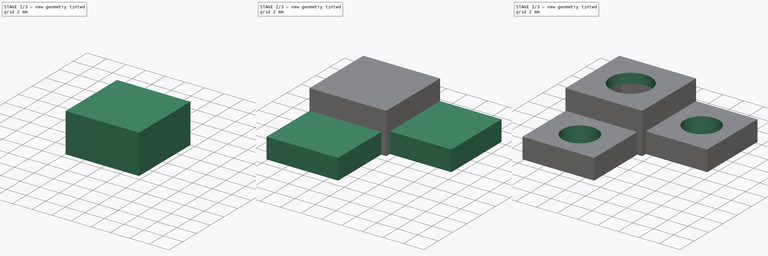
[diagram: build sequence overview — one tinted view per stage of 3, left to right]
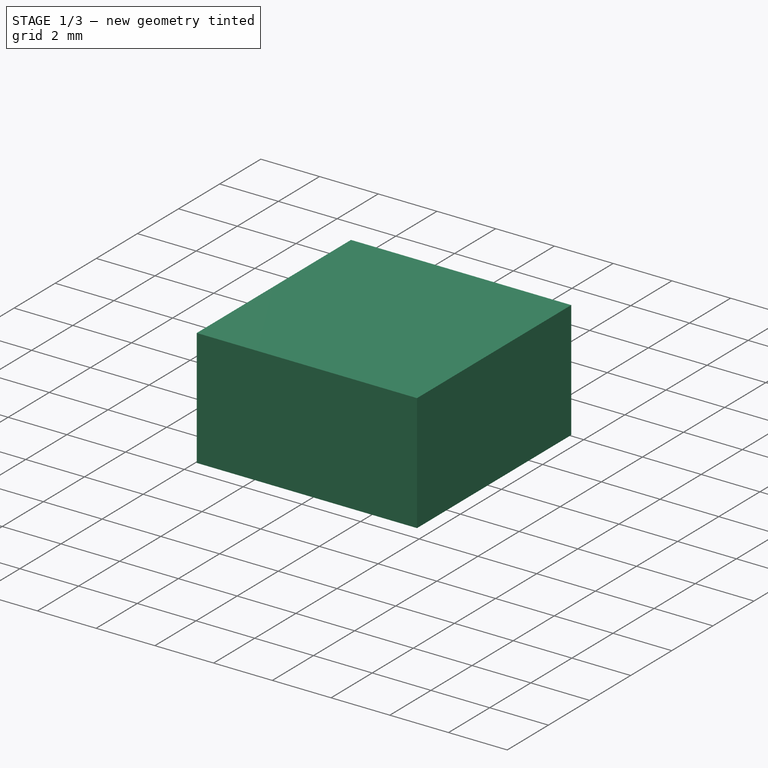
[diagram: stage 1 of 3 — iso view after this stage's code; geometry added in this stage tinted green]
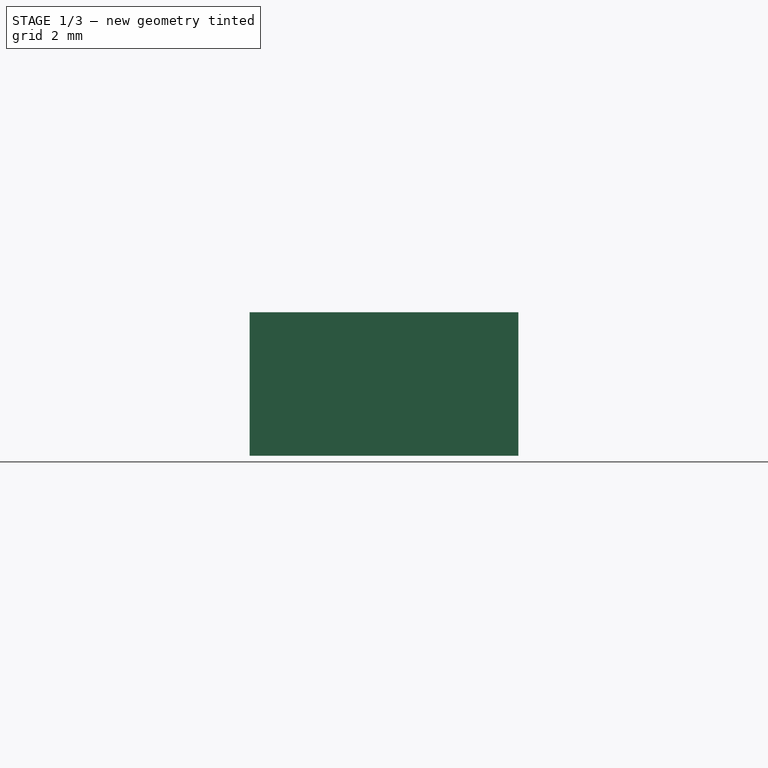
[diagram: stage 1 of 3 — front view after this stage's code; geometry added in this stage tinted green]
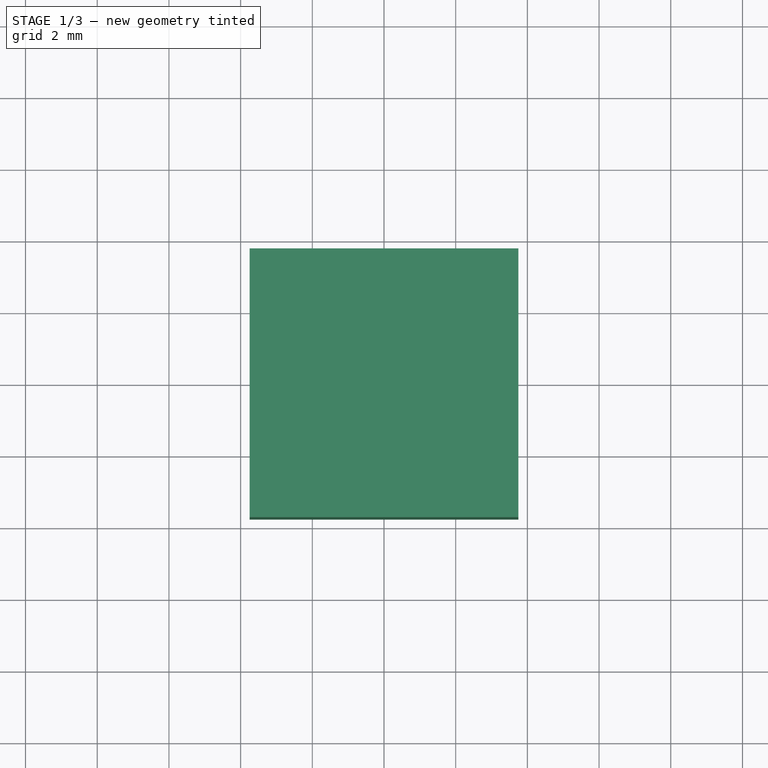
[diagram: stage 1 of 3 — top view after this stage's code; geometry added in this stage tinted green]
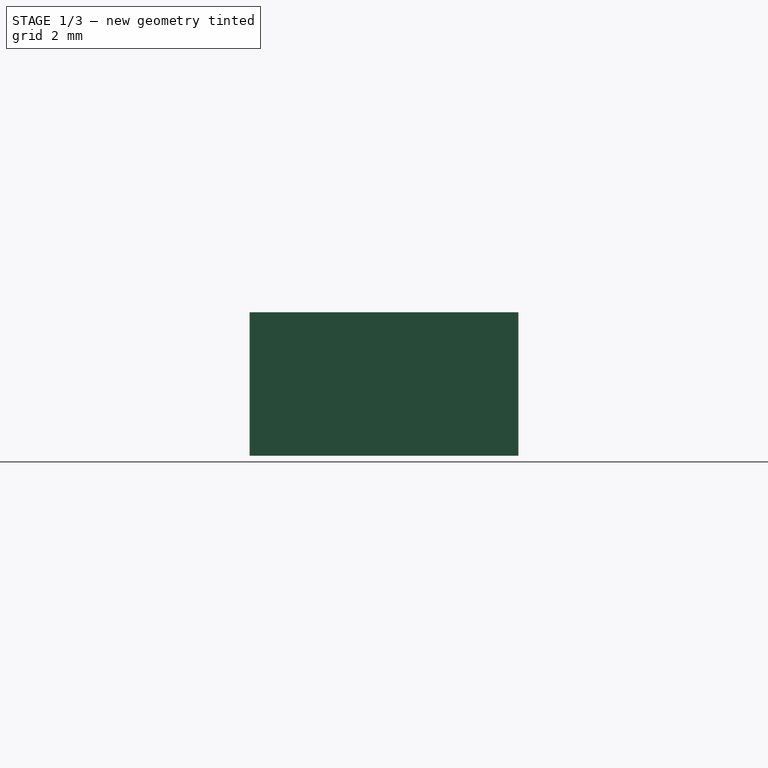
[diagram: stage 1 of 3 — right view after this stage's code; geometry added in this stage tinted green]
FCSTD DOCUMENT  (FreeCAD 1.0R39109 (Git))
Label: top corner magnet
License: All rights reserved
LicenseURL: https://en.wikipedia.org/wiki/All_rights_reserved
objects: Sketcher::SketchObject×6, PartDesign::Pad×4, PartDesign::Hole×1, PartDesign::Pocket×1, PartDesign::Body×1
note: 31 computed .brp shape members not serialized (recipe doc carries the construction recipe); baked Part::Feature solids carry a one-line shape summary decoded from their .brp
EXTERNAL_REF file=case.FCStd obj=Spreadsheet

FEATURE [Sketcher::SketchObject] Sketch
  ArcFitTolerance = 1e-06
  AttachmentSupport = -> [XY_Plane]
  FullyConstrained = true
  MakeInternals = false
  MapMode = 5
  expr: Constraints[8] = case#Spreadsheet.magnet_diameter
  sketch-geometry (8):
    g0: LineSegment StartX=-3.025 StartY=3.025 StartZ=0 EndX=-3.025 EndY=-3.025 EndZ=0
    g1: LineSegment StartX=-3.025 StartY=-3.025 StartZ=0 EndX=3.025 EndY=-3.025 EndZ=0
    g2: LineSegment StartX=3.025 StartY=-3.025 StartZ=0 EndX=3.025 EndY=3.025 EndZ=0
    g3: LineSegment StartX=3.025 StartY=3.025 StartZ=0 EndX=-3.025 EndY=3.025 EndZ=0
    g4: LineSegment StartX=-3.75 StartY=3.75 StartZ=0 EndX=-3.75 EndY=-3.75 EndZ=0
    g5: LineSegment StartX=-3.75 StartY=-3.75 StartZ=0 EndX=3.75 EndY=-3.75 EndZ=0
    g6: LineSegment StartX=3.75 StartY=-3.75 StartZ=0 EndX=3.75 EndY=3.75 EndZ=0
    g7: LineSegment StartX=3.75 StartY=3.75 StartZ=0 EndX=-3.75 EndY=3.75 EndZ=0
  constraints (22):
    c: Coincident(g0,g1)
    c: Coincident(g1,g2)
    c: Coincident(g2,g3)
    c: Coincident(g3,g0)
    c: Vertical(g0)
    c: Vertical(g2)
    c: Horizontal(g1)
    c: Horizontal(g3)
    c: DistanceY(g1,g2) = 6.05
    c: Equal(g3,g2)
    c: Symmetric(g1,g0,g-1)
    c: Coincident(g4,g5)
    c: Coincident(g5,g6)
    c: Coincident(g6,g7)
    c: Coincident(g7,g4)
    c: Vertical(g4)
    c: Vertical(g6)
    c: Horizontal(g5)
    c: Horizontal(g7)
    c: Symmetric(g6,g4,g-1)
    c: Equal(g6,g7)
    c: Distance(g4,g7) = 7.5
FEATURE [PartDesign::Pad] Pad  label="magnet compartment wall"
  Direction = (0,0,1)
  Length = 3.05
  Length2 = 10
  Profile = -> Sketch
  ReferenceAxis = -> Sketch [N_Axis]
  Refine = true
  Suppressed = false
  Type = 0
  expr: Length = case#Spreadsheet.magnet_thickness
FEATURE [Sketcher::SketchObject] Sketch001
  ArcFitTolerance = 1e-06
  AttachmentSupport = -> [Pad]
  ExternalGeometry = -> [Pad]
  FullyConstrained = true
  MakeInternals = false
  MapMode = 5
  Placement = pos=(0,0,3.05) rot=(0,0,1;0rad)
  sketch-geometry (4):
    g0: LineSegment StartX=-3.75 StartY=3.75 StartZ=0 EndX=-3.75 EndY=-3.75 EndZ=0
    g1: LineSegment StartX=-3.75 StartY=-3.75 StartZ=0 EndX=3.75 EndY=-3.75 EndZ=0
    g2: LineSegment StartX=3.75 StartY=-3.75 StartZ=0 EndX=3.75 EndY=3.75 EndZ=0
    g3: LineSegment StartX=3.75 StartY=3.75 StartZ=0 EndX=-3.75 EndY=3.75 EndZ=0
  constraints (10):
    c: Coincident(g0,g1)
    c: Coincident(g1,g2)
    c: Coincident(g2,g3)
    c: Coincident(g3,g0)
    c: Vertical(g0)
    c: Vertical(g2)
    c: Horizontal(g1)
    c: Horizontal(g3)
    c: Coincident(g0,g-3)
    c: Coincident(g1,g-4)
FEATURE [PartDesign::Pad] Pad001  label="bottom wall for magnets compartment"
  BaseFeature = -> Pad
  Direction = (0,0,1)
  Length = 0.95
  Length2 = 10
  Profile = -> Sketch001
  ReferenceAxis = -> Sketch001 [N_Axis]
  Refine = true
  Suppressed = false
  Type = 0
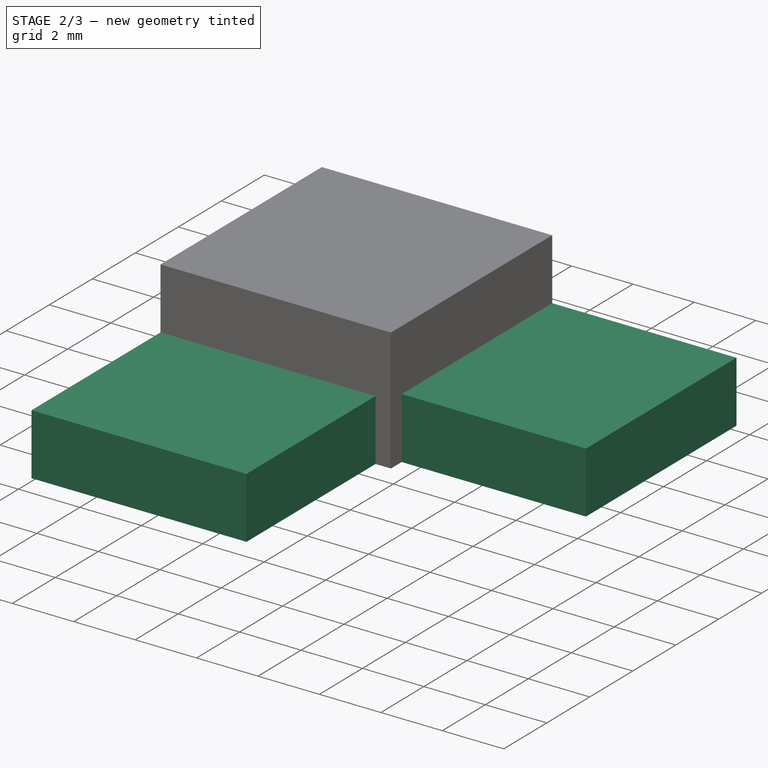
[diagram: stage 2 of 3 — iso view after this stage's code; geometry added in this stage tinted green]
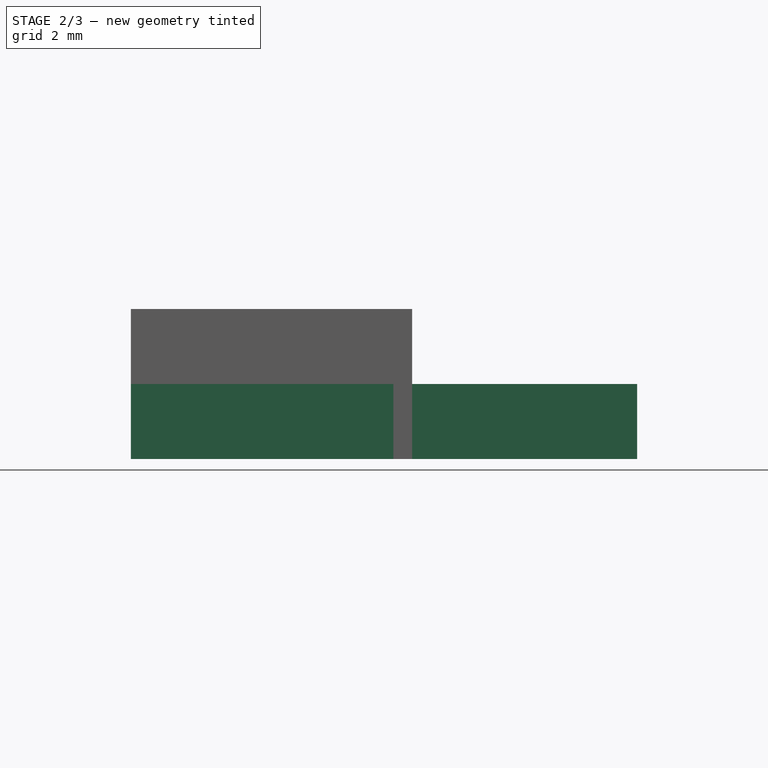
[diagram: stage 2 of 3 — front view after this stage's code; geometry added in this stage tinted green]
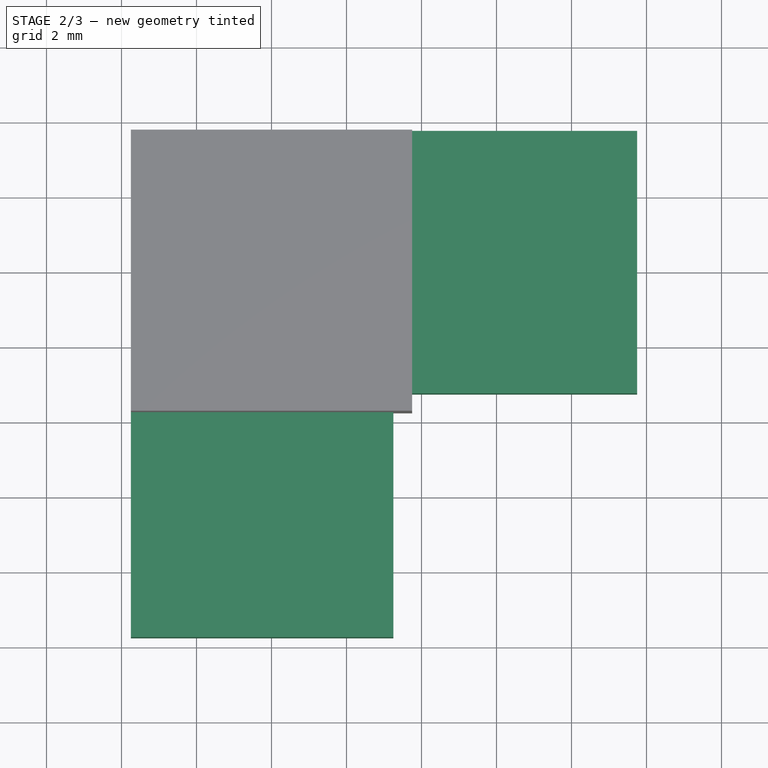
[diagram: stage 2 of 3 — top view after this stage's code; geometry added in this stage tinted green]
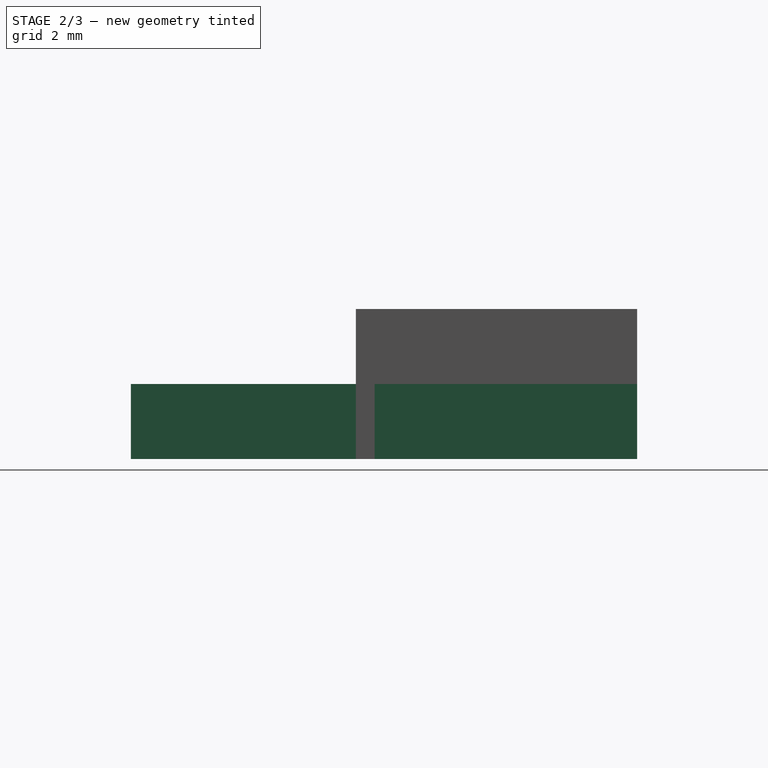
[diagram: stage 2 of 3 — right view after this stage's code; geometry added in this stage tinted green]
FEATURE [Sketcher::SketchObject] Sketch002
  ArcFitTolerance = 1e-06
  AttachmentSupport = -> [Pad001]
  ExternalGeometry = -> [Pad001]
  FullyConstrained = true
  MakeInternals = false
  MapMode = 5
  Placement = pos=(0,-3.75,0) rot=(1,0,0;1.5708rad)
  sketch-geometry (4):
    g0: LineSegment StartX=-3.75 StartY=0 StartZ=0 EndX=3.25 EndY=0 EndZ=0
    g1: LineSegment StartX=3.25 StartY=0 StartZ=0 EndX=3.25 EndY=2 EndZ=0
    g2: LineSegment StartX=3.25 StartY=2 StartZ=0 EndX=-3.75 EndY=2 EndZ=0
    g3: LineSegment StartX=-3.75 StartY=2 StartZ=0 EndX=-3.75 EndY=0 EndZ=0
  constraints (11):
    c: Coincident(g0,g1)
    c: Coincident(g1,g2)
    c: Coincident(g2,g3)
    c: Coincident(g3,g0)
    c: Horizontal(g0)
    c: Horizontal(g2)
    c: Vertical(g1)
    c: Vertical(g3)
    c: Distance(g1,g3) = 7
    c: Distance(g0,g2) = 2
    c: Coincident(g0,g-3)
FEATURE [PartDesign::Pad] Pad002  label="left flange"
  BaseFeature = -> Pad001
  Direction = (0,-1,2e-16)
  Length = 6
  Length2 = 10
  Profile = -> Sketch002
  ReferenceAxis = -> Sketch002 [N_Axis]
  Refine = true
  Suppressed = false
  Type = 0
FEATURE [Sketcher::SketchObject] Sketch004
  ArcFitTolerance = 1e-06
  AttachmentSupport = -> [Pad002]
  ExternalGeometry = -> [Pad002]
  FullyConstrained = true
  MakeInternals = false
  MapMode = 5
  Placement = pos=(3.75,0,0) rot=(0.57735,0.57735,0.57735;2.0944rad)
  sketch-geometry (4):
    g0: LineSegment StartX=3.75 StartY=0 StartZ=0 EndX=3.75 EndY=2 EndZ=0
    g1: LineSegment StartX=3.75 StartY=2 StartZ=0 EndX=-3.25 EndY=2 EndZ=0
    g2: LineSegment StartX=-3.25 StartY=2 StartZ=0 EndX=-3.25 EndY=0 EndZ=0
    g3: LineSegment StartX=-3.25 StartY=0 StartZ=0 EndX=3.75 EndY=0 EndZ=0
  constraints (11):
    c: Coincident(g0,g1)
    c: Coincident(g1,g2)
    c: Coincident(g2,g3)
    c: Coincident(g3,g0)
    c: Vertical(g0)
    c: Vertical(g2)
    c: Horizontal(g1)
    c: Horizontal(g3)
    c: Distance(g0,g2) = 7
    c: Distance(g1,g3) = 2
    c: Coincident(g0,g-3)
FEATURE [PartDesign::Pad] Pad003  label="right flange"
  BaseFeature = -> Pad002
  Direction = (1,0,0)
  Length = 6
  Length2 = 10
  Profile = -> Sketch004
  ReferenceAxis = -> Sketch004 [N_Axis]
  Refine = true
  Suppressed = false
  Type = 0
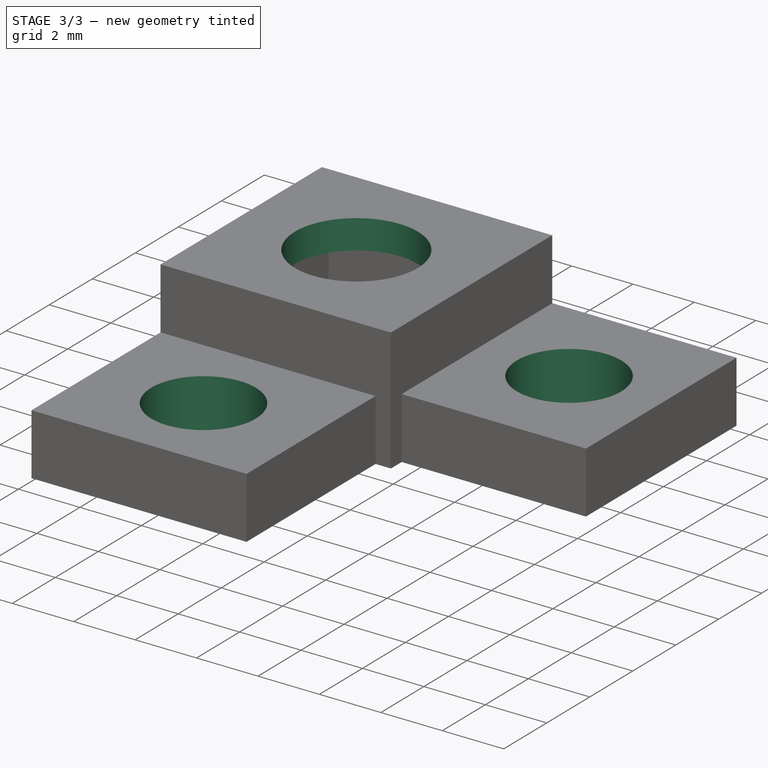
[diagram: stage 3 of 3 — iso view after this stage's code; geometry added in this stage tinted green]
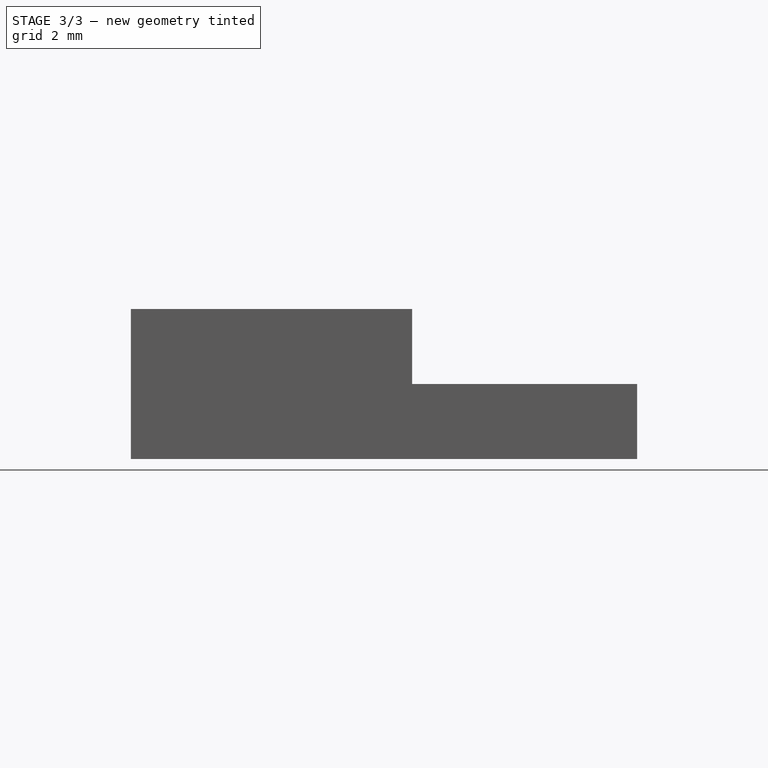
[diagram: stage 3 of 3 — front view after this stage's code; geometry added in this stage tinted green]
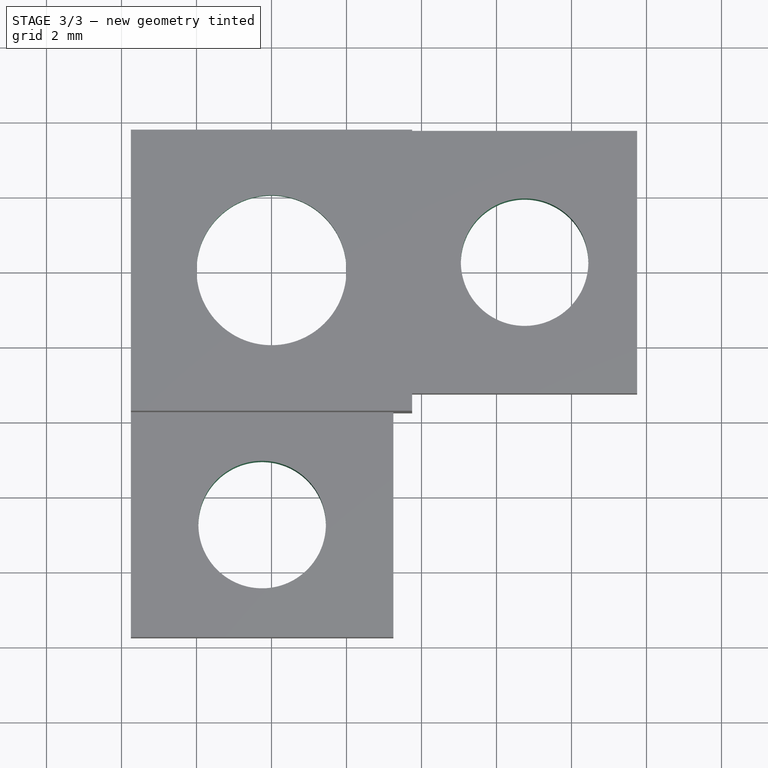
[diagram: stage 3 of 3 — top view after this stage's code; geometry added in this stage tinted green]
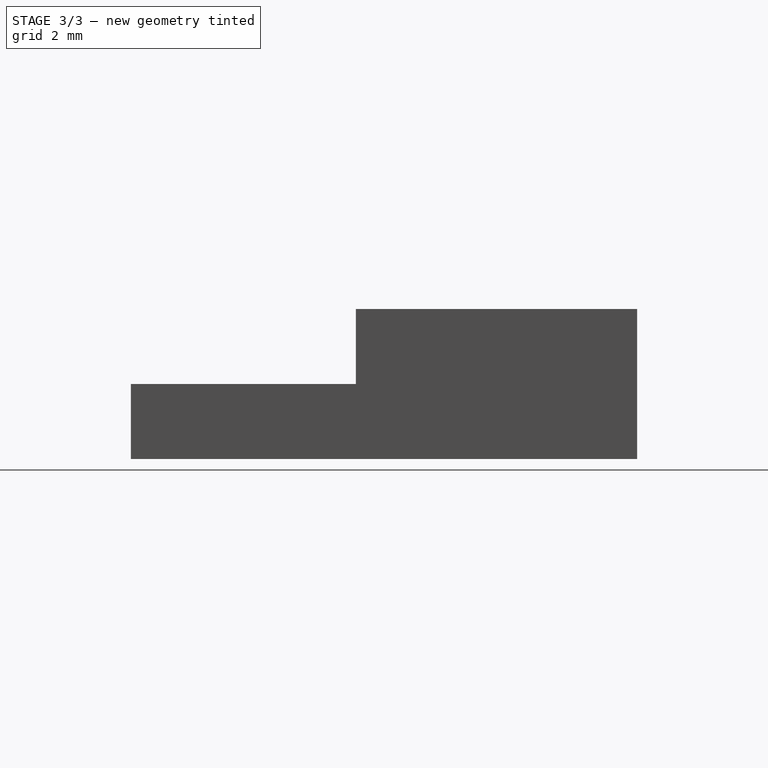
[diagram: stage 3 of 3 — right view after this stage's code; geometry added in this stage tinted green]
FEATURE [Sketcher::SketchObject] Sketch005
  ArcFitTolerance = 1e-06
  AttachmentSupport = -> [Pad003]
  ExternalGeometry = -> [Pad003]
  FullyConstrained = true
  MakeInternals = false
  MapMode = 5
  Placement = pos=(0,0,2e-16) rot=(1,0,0;3.14159rad)
  sketch-geometry (2):
    g0: Circle CenterX=6.75 CenterY=-0.25 CenterZ=0 NormalX=0 NormalY=0 NormalZ=1 AngleXU=0 Radius=1.5
    g1: Circle CenterX=-0.25 CenterY=6.75 CenterZ=0 NormalX=0 NormalY=0 NormalZ=1 AngleXU=0 Radius=1.5
  constraints (4):
    c: Diameter(g0) = 3
    c: Diameter(g1) = 3
    c: Symmetric(g-5,g-6,g1)
    c: Symmetric(g-4,g-3,g0)
FEATURE [PartDesign::Hole] Hole  label="screw holes"
  BaseFeature = -> Pad003
  CustomThreadClearance = 0
  Depth = 25
  DepthType = 0
  Diameter = 3.4
  DrillForDepth = false
  DrillPoint = 1
  DrillPointAngle = 118
  HoleCutCountersinkAngle = 90
  HoleCutCustomValues = false
  HoleCutDepth = 0
  HoleCutDiameter = 6.1
  HoleCutType = 0
  ModelThread = false
  Profile = -> Sketch005
  Refine = true
  Suppressed = false
  Tapered = false
  TaperedAngle = 90
  ThreadClass = 0
  ThreadDepth = 25
  ThreadDepthType = 0
  ThreadDirection = 0
  ThreadFit = 0
  ThreadSize = 9
  ThreadType = 1
  Threaded = false
  UseCustomThreadClearance = false
FEATURE [Sketcher::SketchObject] Sketch006
  ArcFitTolerance = 1e-06
  AttachmentSupport = -> [Hole]
  ExternalGeometry = -> [Hole]
  FullyConstrained = true
  MakeInternals = false
  MapMode = 5
  Placement = pos=(0,0,4) rot=(0,0,1;0rad)
  sketch-geometry (1):
    g0: Circle CenterX=-2e-16 CenterY=5e-16 CenterZ=0 NormalX=0 NormalY=0 NormalZ=1 AngleXU=0 Radius=2
  constraints (2):
    c: Diameter(g0) = 4
    c: Symmetric(g-4,g-3,g0)
FEATURE [PartDesign::Pocket] Pocket  label="magnet opening"
  BaseFeature = -> Hole
  Direction = (0,0,-1)
  Length = 1
  Length2 = 5
  Profile = -> Sketch006
  ReferenceAxis = -> Sketch006 [N_Axis]
  Refine = true
  Suppressed = false
  Type = 0
FEATURE [PartDesign::Body] Body
  AllowCompound = false
  Group = -> [Sketch,Pad,Sketch001,Pad001,Sketch002,Pad002,Sketch004,Pad003,Sketch005,Hole,Sketch006,Pocket]
  Origin = -> Origin
  Tip = -> Pocket
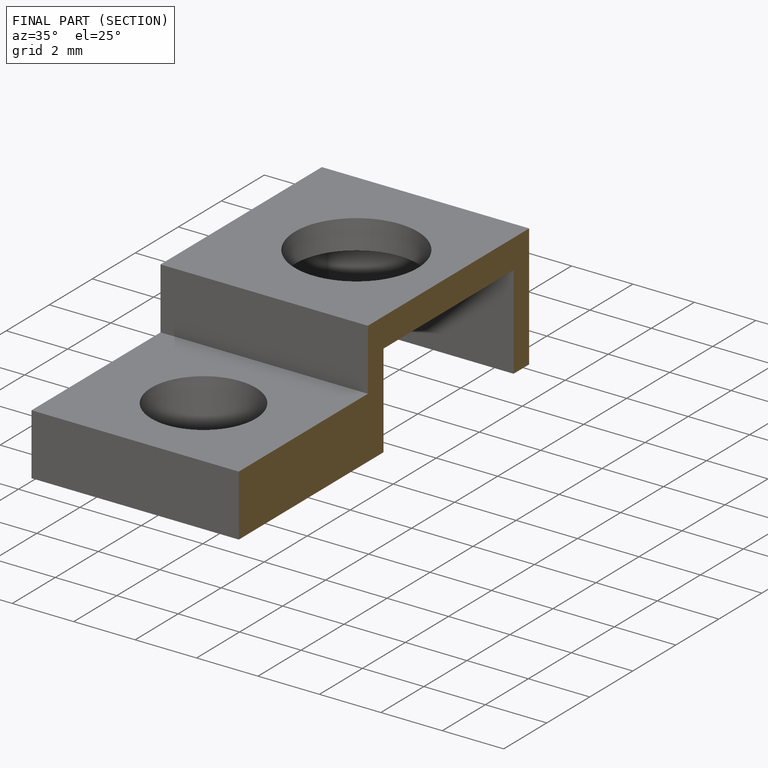
[diagram: finished part — half-section view (interior)]
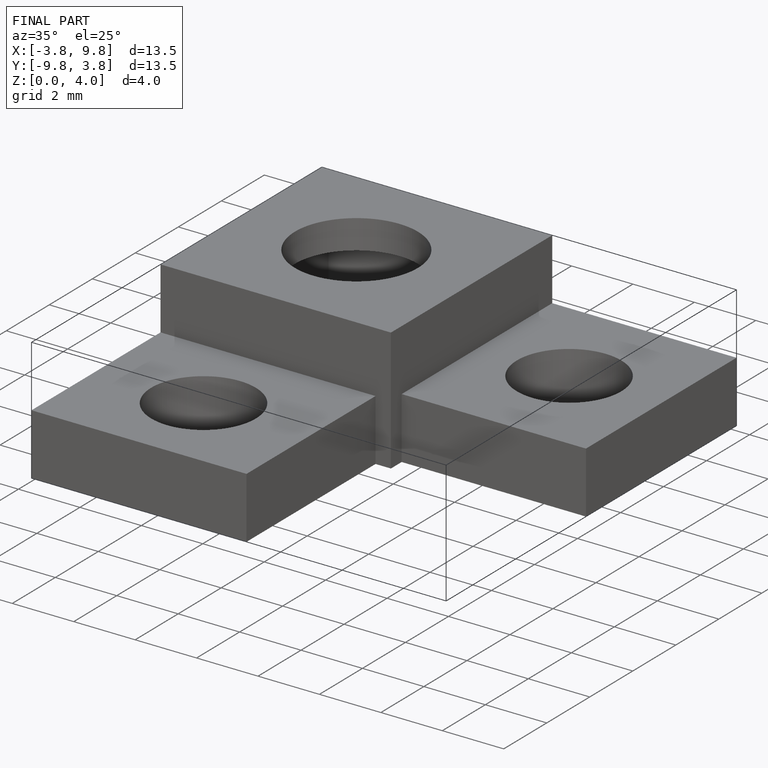
[diagram: finished part — iso view with bounding-box wireframe]
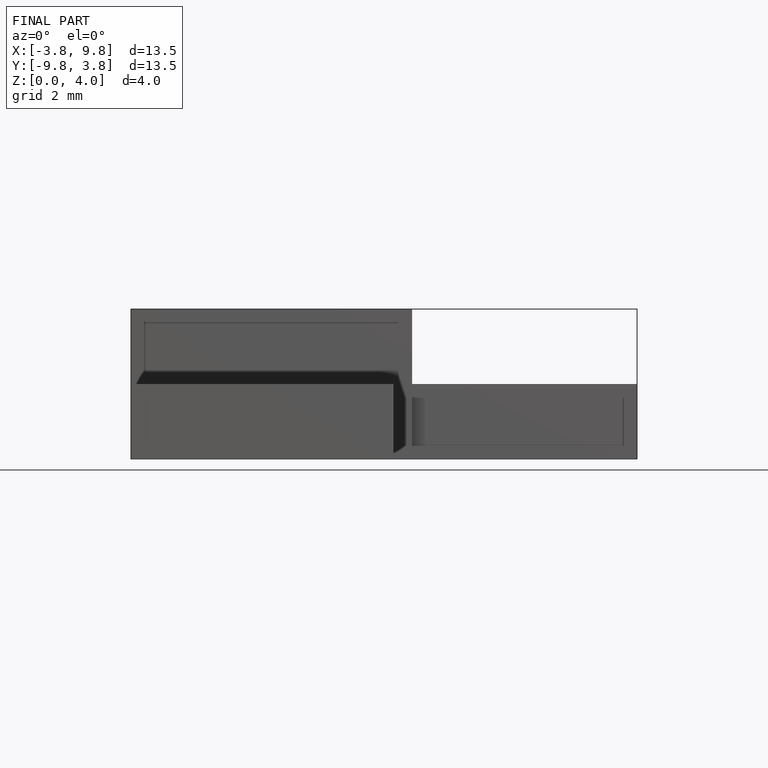
[diagram: finished part — front view with bounding-box wireframe]
